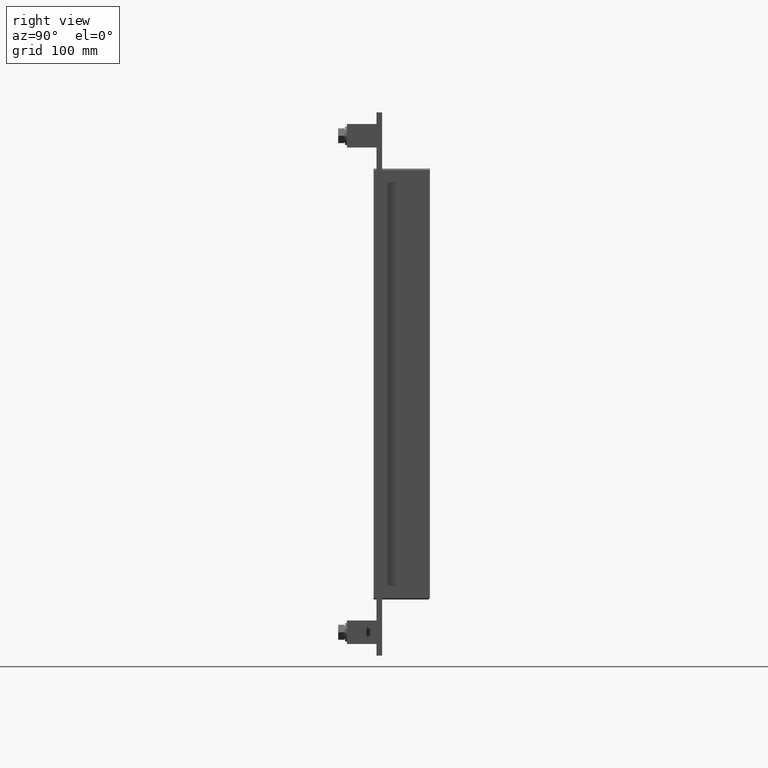
[diagram: clean part render]
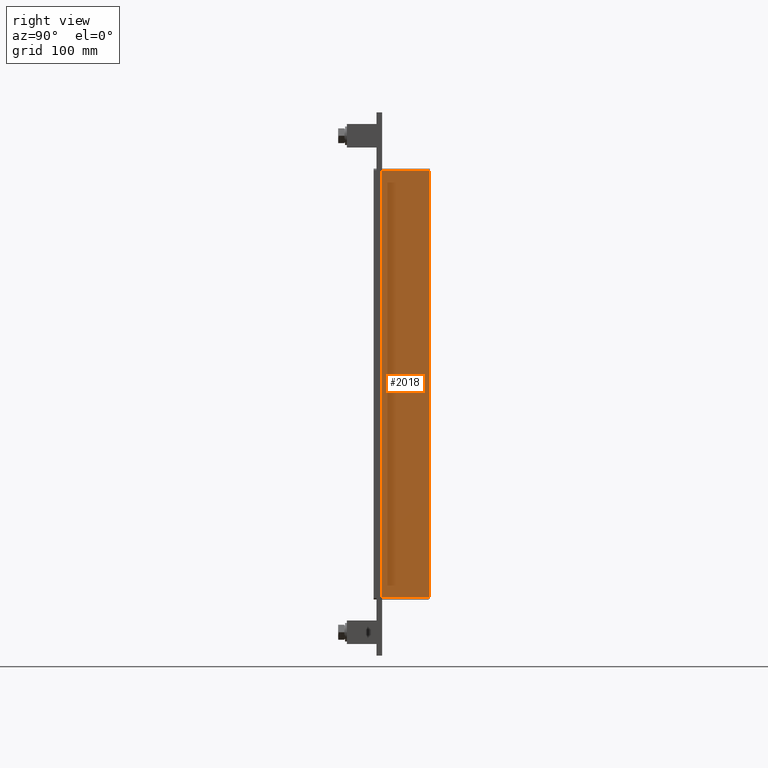
[diagram: same view with one face highlighted and labeled with its STEP entity id]
A machine part, right view. The second image highlights one B-rep face of the part: STEP entity #2018.
In plain terms, the highlighted planar face has unit normal (1, 0, 0).
Its self-contained STEP definition (entity closure, byte-faithful):
#1127=CARTESIAN_POINT('',(196.75000000000006,57.0,-227.99999999999997));
#1128=VERTEX_POINT('',#1127);
#1160=CARTESIAN_POINT('',(196.75000000000006,57.0,228.00000000000006));
#1161=VERTEX_POINT('',#1160);
#1169=CARTESIAN_POINT('',(196.75000000000006,57.0,228.00000000000006));
#1170=DIRECTION('',(0.0,0.0,-1.0));
#1171=VECTOR('',#1170,456.00000000000006);
#1172=LINE('',#1169,#1171);
#1173=EDGE_CURVE('',#1161,#1128,#1172,.T.);
#1453=CARTESIAN_POINT('',(196.75000000000006,6.000000000000001,-227.99999999999997));
#1454=VERTEX_POINT('',#1453);
#1462=CARTESIAN_POINT('',(196.75000000000006,6.000000000000001,228.00000000000006));
#1463=VERTEX_POINT('',#1462);
#1464=CARTESIAN_POINT('',(196.75000000000006,6.000000000000001,228.00000000000006));
#1465=DIRECTION('',(0.0,0.0,-1.0));
#1466=VECTOR('',#1465,456.00000000000006);
#1467=LINE('',#1464,#1466);
#1468=EDGE_CURVE('',#1463,#1454,#1467,.T.);
#1798=CARTESIAN_POINT('',(196.75000000000006,57.0,-227.99999999999997));
#1799=DIRECTION('',(0.0,-1.0,0.0));
#1800=VECTOR('',#1799,51.0);
#1801=LINE('',#1798,#1800);
#1802=EDGE_CURVE('',#1128,#1454,#1801,.T.);
#1996=CARTESIAN_POINT('',(196.75000000000006,6.000000000000001,228.00000000000006));
#1997=DIRECTION('',(0.0,1.0,0.0));
#1998=VECTOR('',#1997,51.0);
#1999=LINE('',#1996,#1998);
#2000=EDGE_CURVE('',#1463,#1161,#1999,.T.);
#2007=CARTESIAN_POINT('',(196.75000000000006,0.0,230.0));
#2008=DIRECTION('',(1.0,0.0,0.0));
#2009=DIRECTION('',(0.0,0.0,-1.0));
#2010=AXIS2_PLACEMENT_3D('',#2007,#2008,#2009);
#2011=PLANE('',#2010);
#2012=ORIENTED_EDGE('',*,*,#1468,.T.);
#2013=ORIENTED_EDGE('',*,*,#1802,.F.);
#2014=ORIENTED_EDGE('',*,*,#1173,.F.);
#2015=ORIENTED_EDGE('',*,*,#2000,.F.);
#2016=EDGE_LOOP('',(#2012,#2013,#2014,#2015));
#2017=FACE_OUTER_BOUND('',#2016,.T.);
#2018=ADVANCED_FACE('',(#2017),#2011,.T.);